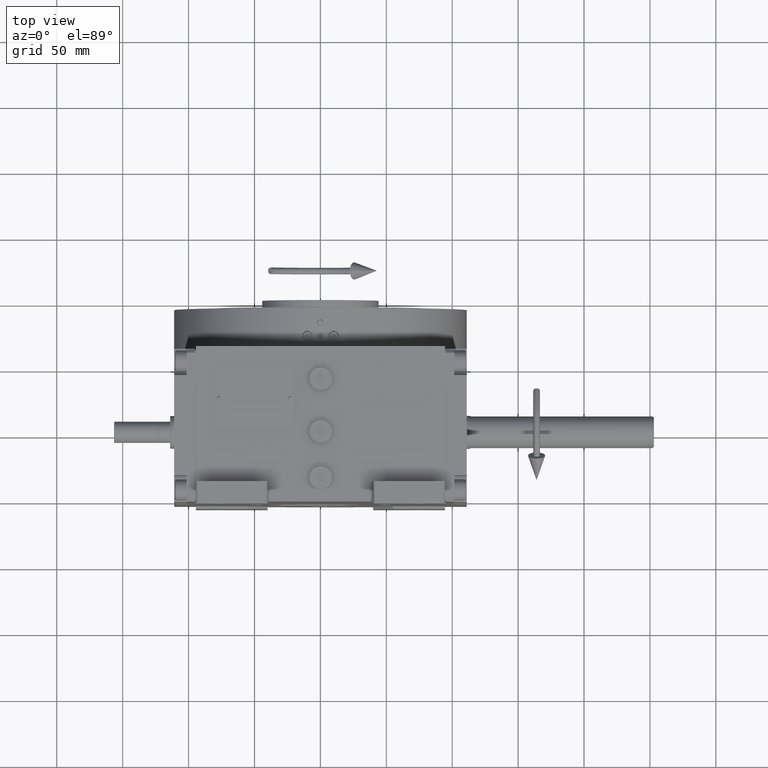
[diagram: clean part render]
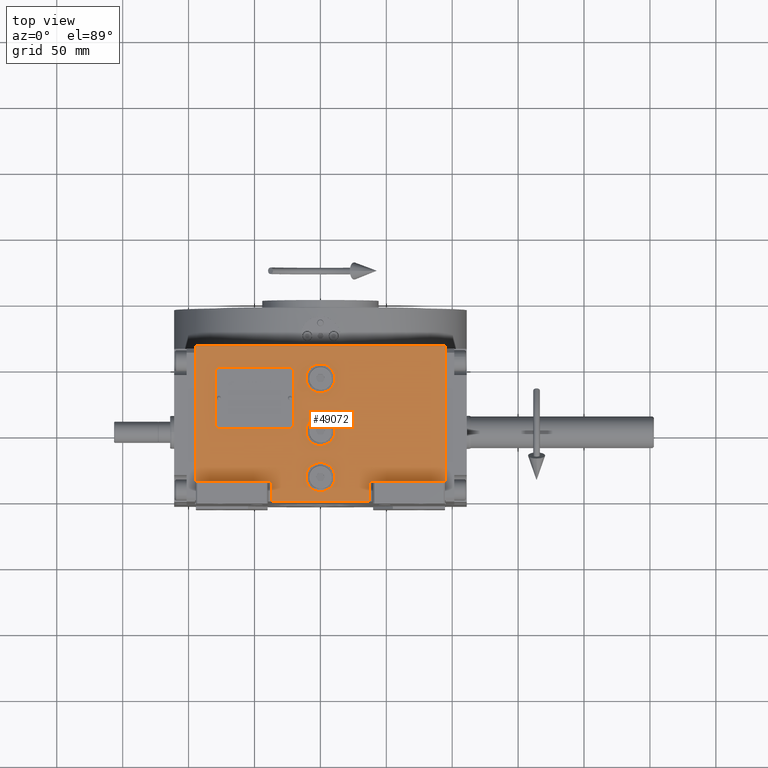
[diagram: same view with one face highlighted and labeled with its STEP entity id]
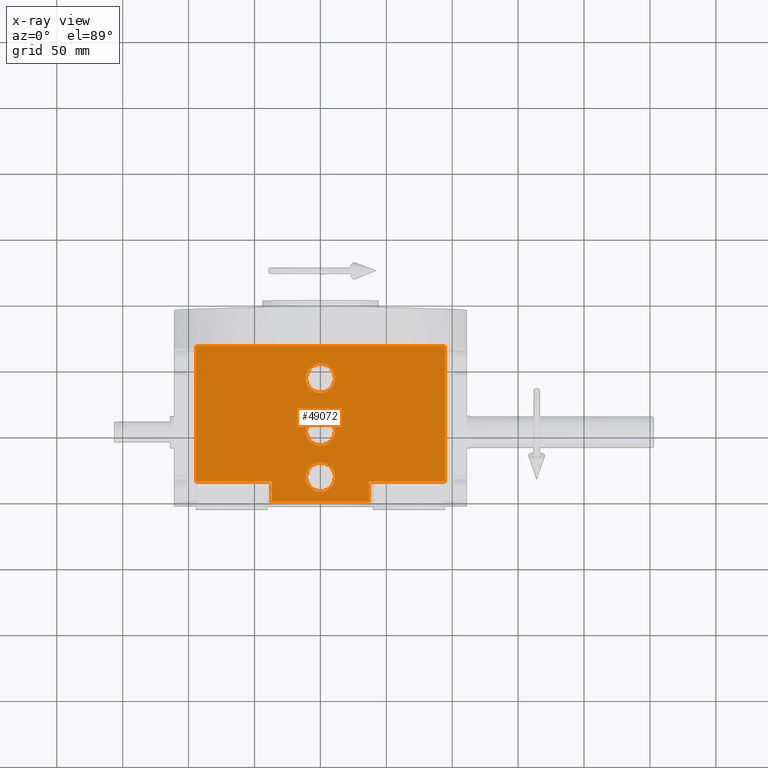
[diagram: x-ray of the same camera — body ghosted, the highlighted face saturated]
A machine part, top view. The second image highlights one B-rep face of the part: STEP entity #49072.
The next image is the same camera in x-ray: the body ghosted, the highlighted face saturated — about 0% of this face is hidden behind the body in this view.
In plain terms, the highlighted planar face has unit normal (0, 0, 1).
Its self-contained STEP definition (entity closure, byte-faithful):
#174 = VECTOR ( 'NONE', #59485, 1000.000000000000000 ) ;
#1559 = LINE ( 'NONE', #65070, #57657 ) ;
#1756 = CARTESIAN_POINT ( 'NONE',  ( 0.000000000000000000, 0.000000000000000000, 163.5000000000000000 ) ) ;
#1896 = DIRECTION ( 'NONE',  ( 1.000000000000000000, 0.000000000000000000, 0.000000000000000000 ) ) ;
#3171 = CIRCLE ( 'NONE', #55256, 11.00000000000000000 ) ;
#3492 = VERTEX_POINT ( 'NONE', #7754 ) ;
#4103 = EDGE_CURVE ( 'NONE', #43677, #34197, #52081, .T. ) ;
#4888 = ORIENTED_EDGE ( 'NONE', *, *, #29566, .F. ) ;
#6008 = VERTEX_POINT ( 'NONE', #6521 ) ;
#6521 = CARTESIAN_POINT ( 'NONE',  ( 36.99999999999934630, -38.50000000000000000, 163.5000000000000000 ) ) ;
#7259 = EDGE_CURVE ( 'NONE', #43677, #47385, #61182, .T. ) ;
#7396 = DIRECTION ( 'NONE',  ( 0.000000000000000000, 0.000000000000000000, 1.000000000000000000 ) ) ;
#7635 = CIRCLE ( 'NONE', #23189, 11.00000000000000000 ) ;
#7754 = CARTESIAN_POINT ( 'NONE',  ( 11.00000000000000000, -35.00000000000000000, 163.5000000000000000 ) ) ;
#7847 = LINE ( 'NONE', #17926, #43260 ) ;
#9227 = DIRECTION ( 'NONE',  ( 0.000000000000000000, 0.000000000000000000, 1.000000000000000000 ) ) ;
#10454 = EDGE_LOOP ( 'NONE', ( #4888, #53312 ) ) ;
#10489 = DIRECTION ( 'NONE',  ( 0.000000000000000000, 0.000000000000000000, 1.000000000000000000 ) ) ;
#11641 = AXIS2_PLACEMENT_3D ( 'NONE', #49356, #33737, #18147 ) ;
#12652 = LINE ( 'NONE', #53920, #174 ) ;
#12781 = EDGE_CURVE ( 'NONE', #17003, #38462, #35533, .T. ) ;
#13247 = CIRCLE ( 'NONE', #53085, 11.00000000000000000 ) ;
#13702 = VECTOR ( 'NONE', #24964, 1000.000000000000000 ) ;
#13999 = VERTEX_POINT ( 'NONE', #38307 ) ;
#14413 = CARTESIAN_POINT ( 'NONE',  ( 11.00000000000000000, 40.00000000000000000, 163.5000000000000000 ) ) ;
#14517 = ORIENTED_EDGE ( 'NONE', *, *, #7259, .F. ) ;
#15018 = FACE_BOUND ( 'NONE', #67973, .T. ) ;
#15340 = CARTESIAN_POINT ( 'NONE',  ( 0.000000000000000000, 0.000000000000000000, 163.5000000000000000 ) ) ;
#15443 = VERTEX_POINT ( 'NONE', #57358 ) ;
#15872 = CARTESIAN_POINT ( 'NONE',  ( -11.00000000000000000, 0.000000000000000000, 163.5000000000000000 ) ) ;
#17003 = VERTEX_POINT ( 'NONE', #65578 ) ;
#17926 = CARTESIAN_POINT ( 'NONE',  ( -94.50000000000000000, -38.50000000000000000, 163.5000000000000000 ) ) ;
#18065 = DIRECTION ( 'NONE',  ( 0.000000000000000000, 0.000000000000000000, 1.000000000000000000 ) ) ;
#18147 = DIRECTION ( 'NONE',  ( -1.000000000000000000, 0.000000000000000000, 0.000000000000000000 ) ) ;
#18948 = CARTESIAN_POINT ( 'NONE',  ( 0.000000000000000000, -35.00000000000000000, 163.5000000000000000 ) ) ;
#19556 = DIRECTION ( 'NONE',  ( -1.000000000000000000, 0.000000000000000000, 0.000000000000000000 ) ) ;
#20196 = DIRECTION ( 'NONE',  ( 0.000000000000000000, 0.000000000000000000, 1.000000000000000000 ) ) ;
#20512 = CIRCLE ( 'NONE', #11641, 11.00000000000000000 ) ;
#21441 = VERTEX_POINT ( 'NONE', #58186 ) ;
#23175 = DIRECTION ( 'NONE',  ( 0.000000000000000000, 0.000000000000000000, 1.000000000000000000 ) ) ;
#23189 = AXIS2_PLACEMENT_3D ( 'NONE', #49197, #23175, #58610 ) ;
#23362 = CARTESIAN_POINT ( 'NONE',  ( 0.000000000000000000, 40.00000000000000000, 163.5000000000000000 ) ) ;
#23694 = VECTOR ( 'NONE', #62193, 1000.000000000000000 ) ;
#24738 = DIRECTION ( 'NONE',  ( 0.000000000000000000, 1.000000000000000000, 0.000000000000000000 ) ) ;
#24964 = DIRECTION ( 'NONE',  ( 0.000000000000000000, -1.000000000000000000, 0.000000000000000000 ) ) ;
#25993 = CARTESIAN_POINT ( 'NONE',  ( 11.00000000000000000, -1.179289943096200059E-15, 163.5000000000000000 ) ) ;
#26830 = ORIENTED_EDGE ( 'NONE', *, *, #44504, .F. ) ;
#27778 = AXIS2_PLACEMENT_3D ( 'NONE', #15340, #20196, #67064 ) ;
#28125 = VECTOR ( 'NONE', #53509, 1000.000000000000000 ) ;
#28668 = ORIENTED_EDGE ( 'NONE', *, *, #66448, .F. ) ;
#29566 = EDGE_CURVE ( 'NONE', #38462, #17003, #7635, .T. ) ;
#31026 = CARTESIAN_POINT ( 'NONE',  ( -94.50000000000000000, 64.50000000000000000, 163.5000000000000000 ) ) ;
#31635 = DIRECTION ( 'NONE',  ( 1.000000000000000000, 0.000000000000000000, 0.000000000000000000 ) ) ;
#31804 = CARTESIAN_POINT ( 'NONE',  ( -94.50000000000000000, -38.50000000000000000, 163.5000000000000000 ) ) ;
#32800 = EDGE_CURVE ( 'NONE', #57367, #47385, #12652, .T. ) ;
#33024 = LINE ( 'NONE', #58741, #28125 ) ;
#33737 = DIRECTION ( 'NONE',  ( 0.000000000000000000, 0.000000000000000000, 1.000000000000000000 ) ) ;
#34197 = VERTEX_POINT ( 'NONE', #41420 ) ;
#34860 = CARTESIAN_POINT ( 'NONE',  ( -36.99999999999929656, -38.50000000000000000, 163.5000000000000000 ) ) ;
#34975 = EDGE_CURVE ( 'NONE', #6008, #34197, #56530, .T. ) ;
#35533 = CIRCLE ( 'NONE', #44360, 11.00000000000000000 ) ;
#36158 = FACE_OUTER_BOUND ( 'NONE', #62838, .T. ) ;
#36379 = VERTEX_POINT ( 'NONE', #25993 ) ;
#37155 = VERTEX_POINT ( 'NONE', #31026 ) ;
#37294 = ORIENTED_EDGE ( 'NONE', *, *, #43745, .F. ) ;
#38307 = CARTESIAN_POINT ( 'NONE',  ( 94.50000000000000000, -38.50000000000000000, 163.5000000000000000 ) ) ;
#38369 = CARTESIAN_POINT ( 'NONE',  ( 36.99999999999934630, -38.50000000000000000, 163.5000000000000000 ) ) ;
#38462 = VERTEX_POINT ( 'NONE', #14413 ) ;
#39226 = DIRECTION ( 'NONE',  ( -1.000000000000000000, 0.000000000000000000, 0.000000000000000000 ) ) ;
#41420 = CARTESIAN_POINT ( 'NONE',  ( 36.99999999999934630, -53.50000000000000000, 163.5000000000000000 ) ) ;
#42024 = FACE_BOUND ( 'NONE', #10454, .T. ) ;
#42254 = ORIENTED_EDGE ( 'NONE', *, *, #68225, .F. ) ;
#43260 = VECTOR ( 'NONE', #50517, 1000.000000000000000 ) ;
#43677 = VERTEX_POINT ( 'NONE', #59509 ) ;
#43745 = EDGE_CURVE ( 'NONE', #37155, #15443, #1559, .T. ) ;
#43761 = AXIS2_PLACEMENT_3D ( 'NONE', #58011, #10489, #31635 ) ;
#44360 = AXIS2_PLACEMENT_3D ( 'NONE', #23362, #7396, #19556 ) ;
#44504 = EDGE_CURVE ( 'NONE', #36379, #55727, #57710, .T. ) ;
#44857 = ORIENTED_EDGE ( 'NONE', *, *, #32800, .T. ) ;
#45541 = CARTESIAN_POINT ( 'NONE',  ( -36.99999999999929656, -53.50000000000000000, 163.5000000000000000 ) ) ;
#46477 = ORIENTED_EDGE ( 'NONE', *, *, #34975, .F. ) ;
#47385 = VERTEX_POINT ( 'NONE', #34860 ) ;
#48881 = EDGE_CURVE ( 'NONE', #21441, #3492, #20512, .T. ) ;
#49072 = ADVANCED_FACE ( 'NONE', ( #62544, #15018, #42024, #36158 ), #63211, .T. ) ;
#49197 = CARTESIAN_POINT ( 'NONE',  ( 0.000000000000000000, 40.00000000000000000, 163.5000000000000000 ) ) ;
#49356 = CARTESIAN_POINT ( 'NONE',  ( 0.000000000000000000, -35.00000000000000000, 163.5000000000000000 ) ) ;
#50517 = DIRECTION ( 'NONE',  ( 0.000000000000000000, 1.000000000000000000, 0.000000000000000000 ) ) ;
#50886 = EDGE_LOOP ( 'NONE', ( #26830, #64968 ) ) ;
#52081 = LINE ( 'NONE', #62531, #23694 ) ;
#53085 = AXIS2_PLACEMENT_3D ( 'NONE', #1756, #18065, #39226 ) ;
#53312 = ORIENTED_EDGE ( 'NONE', *, *, #12781, .F. ) ;
#53509 = DIRECTION ( 'NONE',  ( 0.000000000000000000, 1.000000000000000000, 0.000000000000000000 ) ) ;
#53920 = CARTESIAN_POINT ( 'NONE',  ( -94.50000000000000000, -38.50000000000000000, 163.5000000000000000 ) ) ;
#55006 = EDGE_CURVE ( 'NONE', #55727, #36379, #13247, .T. ) ;
#55256 = AXIS2_PLACEMENT_3D ( 'NONE', #18948, #9227, #56061 ) ;
#55727 = VERTEX_POINT ( 'NONE', #15872 ) ;
#55825 = EDGE_CURVE ( 'NONE', #6008, #13999, #58868, .T. ) ;
#56061 = DIRECTION ( 'NONE',  ( 1.000000000000000000, 0.000000000000000000, 0.000000000000000000 ) ) ;
#56530 = LINE ( 'NONE', #66269, #13702 ) ;
#57358 = CARTESIAN_POINT ( 'NONE',  ( 94.50000000000000000, 64.50000000000000000, 163.5000000000000000 ) ) ;
#57367 = VERTEX_POINT ( 'NONE', #31804 ) ;
#57420 = ORIENTED_EDGE ( 'NONE', *, *, #61548, .T. ) ;
#57657 = VECTOR ( 'NONE', #1896, 1000.000000000000000 ) ;
#57710 = CIRCLE ( 'NONE', #27778, 11.00000000000000000 ) ;
#57733 = ORIENTED_EDGE ( 'NONE', *, *, #55825, .T. ) ;
#58011 = CARTESIAN_POINT ( 'NONE',  ( -94.50000000000000000, -53.50000000000000000, 163.5000000000000000 ) ) ;
#58186 = CARTESIAN_POINT ( 'NONE',  ( -11.00000000000000000, -35.00000000000000000, 163.5000000000000000 ) ) ;
#58610 = DIRECTION ( 'NONE',  ( 1.000000000000000000, 0.000000000000000000, 0.000000000000000000 ) ) ;
#58741 = CARTESIAN_POINT ( 'NONE',  ( 94.50000000000000000, -38.50000000000000000, 163.5000000000000000 ) ) ;
#58868 = LINE ( 'NONE', #38369, #62048 ) ;
#59485 = DIRECTION ( 'NONE',  ( 1.000000000000000000, 0.000000000000000000, 0.000000000000000000 ) ) ;
#59509 = CARTESIAN_POINT ( 'NONE',  ( -36.99999999999929656, -53.50000000000000000, 163.5000000000000000 ) ) ;
#59664 = ORIENTED_EDGE ( 'NONE', *, *, #4103, .T. ) ;
#59887 = DIRECTION ( 'NONE',  ( 1.000000000000000000, 0.000000000000000000, 0.000000000000000000 ) ) ;
#59933 = ORIENTED_EDGE ( 'NONE', *, *, #48881, .F. ) ;
#61182 = LINE ( 'NONE', #45541, #62436 ) ;
#61548 = EDGE_CURVE ( 'NONE', #13999, #15443, #33024, .T. ) ;
#62048 = VECTOR ( 'NONE', #59887, 1000.000000000000000 ) ;
#62193 = DIRECTION ( 'NONE',  ( 1.000000000000000000, 0.000000000000000000, 0.000000000000000000 ) ) ;
#62436 = VECTOR ( 'NONE', #24738, 1000.000000000000000 ) ;
#62531 = CARTESIAN_POINT ( 'NONE',  ( -36.99999999999929656, -53.50000000000000000, 163.5000000000000000 ) ) ;
#62544 = FACE_BOUND ( 'NONE', #50886, .T. ) ;
#62838 = EDGE_LOOP ( 'NONE', ( #59664, #46477, #57733, #57420, #37294, #42254, #44857, #14517 ) ) ;
#63211 = PLANE ( 'NONE',  #43761 ) ;
#64968 = ORIENTED_EDGE ( 'NONE', *, *, #55006, .F. ) ;
#65070 = CARTESIAN_POINT ( 'NONE',  ( -94.50000000000000000, 64.50000000000000000, 163.5000000000000000 ) ) ;
#65578 = CARTESIAN_POINT ( 'NONE',  ( -11.00000000000000000, 40.00000000000000000, 163.5000000000000000 ) ) ;
#66269 = CARTESIAN_POINT ( 'NONE',  ( 36.99999999999934630, -38.50000000000000000, 163.5000000000000000 ) ) ;
#66448 = EDGE_CURVE ( 'NONE', #3492, #21441, #3171, .T. ) ;
#67064 = DIRECTION ( 'NONE',  ( 1.000000000000000000, 0.000000000000000000, 0.000000000000000000 ) ) ;
#67973 = EDGE_LOOP ( 'NONE', ( #28668, #59933 ) ) ;
#68225 = EDGE_CURVE ( 'NONE', #57367, #37155, #7847, .T. ) ;